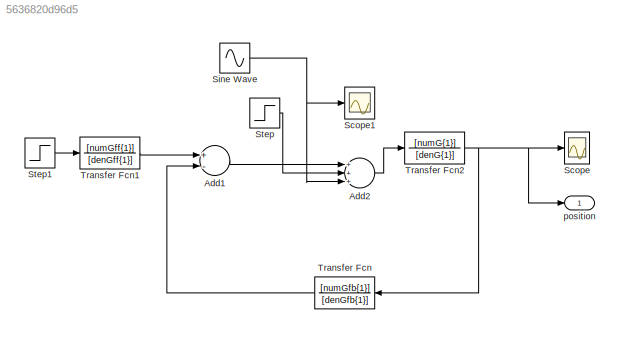
MODEL slx_5636820d96d5
KIND model
CONFIG AbsTol = auto
CONFIG FixedStep = auto
CONFIG MaxStep = auto
CONFIG MinStep = auto
CONFIG RelTol = 1e-3
CONFIG SampleTimeConstraint = Unconstrained
CONFIG Solver = VariableStepAuto
CONFIG SolverMode = SingleTasking
CONFIG SolverName = VariableStepAuto
CONFIG StartTime = 0.0
CONFIG StopTime = 30
BLOCK [Sum] Add1
  InputSameDT = off
  Inputs = +-
  OutDataTypeStr = Inherit: Inherit via internal rule
  Ports = [2, 1]
  SaturateOnIntegerOverflow = off
BLOCK [Sum] Add2
  InputSameDT = off
  Inputs = +++
  OutDataTypeStr = Inherit: Inherit via internal rule
  Ports = [3, 1]
  SaturateOnIntegerOverflow = off
BLOCK [Scope] Scope
  Floating = off
  NumInputPorts = 1
  Ports = [1]
  ScopeSpecificationString = Simulink.scopes.TimeScopeBlockCfg('CurrentConfiguration', extmgr.ConfigurationSet(extmgr.Configuration('Core','General UI',true),extmgr.Configuration('Core','Source UI',true),extmgr.Configuration('Sources','WiredSimulink',true),extmgr.Configuration('Visuals','Time Domain',true,'SerializedDisplays',{struct('MinYLimReal','-0.125','MaxYLimReal','1.12501','YLabelReal','','MinYLimMag','0.00000','MaxYLi...<+1377ch>
BLOCK [Scope] Scope1
  Floating = off
  NumInputPorts = 1
  Ports = [1]
  ScopeSpecificationString = Simulink.scopes.TimeScopeBlockCfg('CurrentConfiguration', extmgr.ConfigurationSet(extmgr.Configuration('Core','General UI',true),extmgr.Configuration('Core','Source UI',true),extmgr.Configuration('Sources','WiredSimulink',true,'DataLoggingVariableName','ScopeData1'),extmgr.Configuration('Visuals','Time Domain',true,'SerializedDisplays',{struct('MinYLimReal','-1.2498','MaxYLimReal','1.24989','YLabe...<+1395ch>
BLOCK [Sin] Sine Wave
  Ports = [0, 1]
  SampleTime = 0
BLOCK [Step] Step
  SampleTime = 0
  Time = 0
BLOCK [Step] Step1
  SampleTime = 0
  Time = 0
BLOCK [TransferFcn] Transfer Fcn
  Denominator = [denGfb{1}]
  Numerator = [numGfb{1}]
BLOCK [TransferFcn] Transfer Fcn1
  Denominator = [denGff{1}]
  Numerator = [numGff{1}]
BLOCK [TransferFcn] Transfer Fcn2
  Denominator = [denG{1}]
  Numerator = [numG{1}]
BLOCK [Outport] position
  IconDisplay = Port number
LINE Add1:1 -> Add2:1
LINE Add2:1 -> Transfer Fcn2:1
NET Sine Wave:1 -> Add2:3, Scope1:1
LINE Step1:1 -> Transfer Fcn1:1
LINE Step:1 -> Add2:2
LINE Transfer Fcn1:1 -> Add1:1
NET Transfer Fcn2:1 -> Scope:1, Transfer Fcn:1, position:1
LINE Transfer Fcn:1 -> Add1:2
note: NET lines group one-source signal fan-out (src -> all destinations, sorted); 1:1 wires keep LINE
